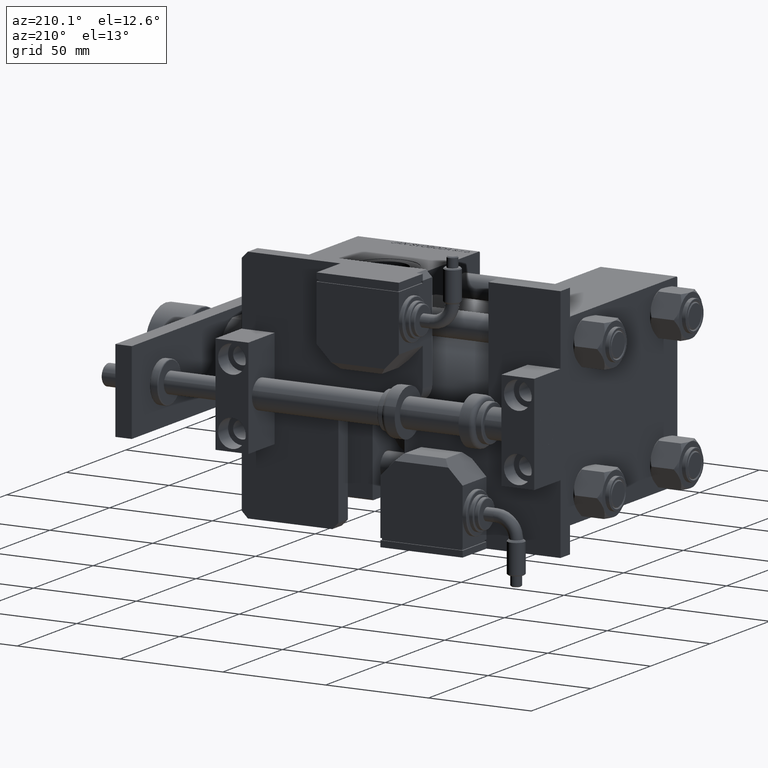
[diagram: clean part render]
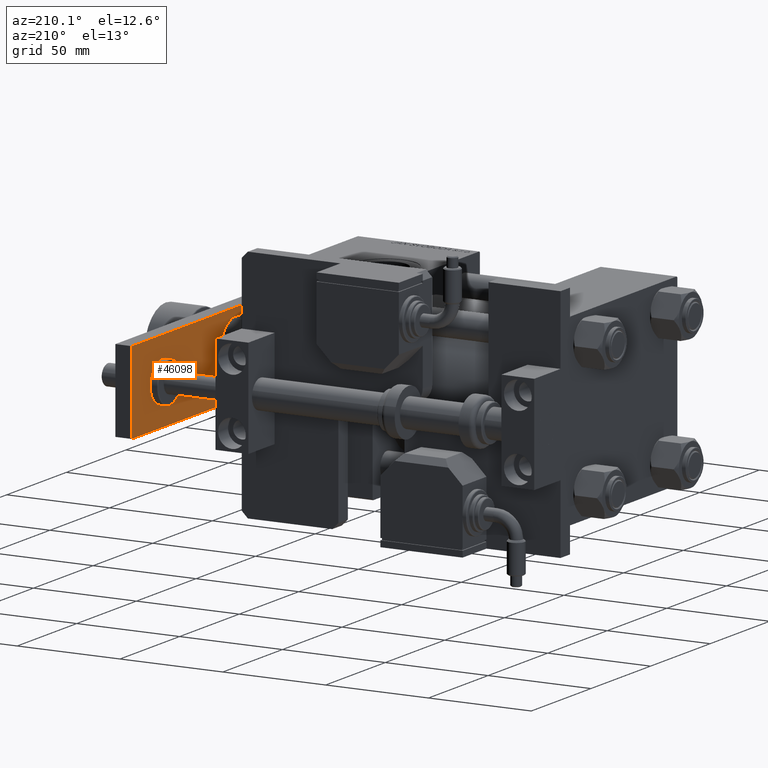
[diagram: same view with one face highlighted and labeled with its STEP entity id]
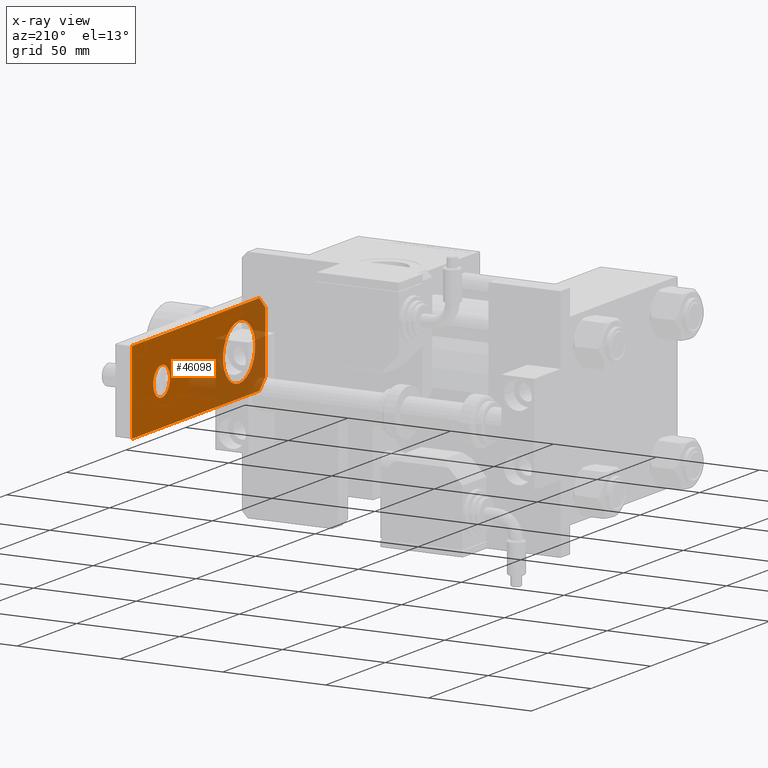
[diagram: x-ray of the same camera — body ghosted, the highlighted face saturated]
A machine part, auxiliary view. The second image highlights one B-rep face of the part: STEP entity #46098.
The next image is the same camera in x-ray: the body ghosted, the highlighted face saturated — about 30% of this face is hidden behind the body in this view.
In plain terms, the highlighted planar face has unit normal (1, 0, -0).
Its self-contained STEP definition (entity closure, byte-faithful):
#367 = ORIENTED_EDGE ( 'NONE', *, *, #19485, .F. ) ;
#391 = VERTEX_POINT ( 'NONE', #34128 ) ;
#494 = CARTESIAN_POINT ( 'NONE',  ( 13.50000000000000000, 21.99999999999999289, 0.000000000000000000 ) ) ;
#1401 = ORIENTED_EDGE ( 'NONE', *, *, #28766, .T. ) ;
#1645 = DIRECTION ( 'NONE',  ( 0.000000000000000000, 0.000000000000000000, 1.000000000000000000 ) ) ;
#2628 = VERTEX_POINT ( 'NONE', #6258 ) ;
#3092 = CARTESIAN_POINT ( 'NONE',  ( 20.00000000000001421, 4.999999999999989342, 0.000000000000000000 ) ) ;
#3747 = AXIS2_PLACEMENT_3D ( 'NONE', #35823, #41376, #14164 ) ;
#4846 = DIRECTION ( 'NONE',  ( -1.000000000000000000, 0.000000000000000000, 0.000000000000000000 ) ) ;
#5014 = CARTESIAN_POINT ( 'NONE',  ( -15.00000000000001066, 0.000000000000000000, 0.000000000000000000 ) ) ;
#5594 = DIRECTION ( 'NONE',  ( -0.7071067811865465735, 0.7071067811865485719, -0.000000000000000000 ) ) ;
#5622 = CARTESIAN_POINT ( 'NONE',  ( 20.00000000000001421, 4.999999999999990230, 0.000000000000000000 ) ) ;
#5711 = EDGE_LOOP ( 'NONE', ( #1401, #12158 ) ) ;
#5985 = EDGE_CURVE ( 'NONE', #26252, #48296, #41350, .T. ) ;
#6010 = CARTESIAN_POINT ( 'NONE',  ( -7.000000000000004441, 87.00000000000000000, 0.000000000000000000 ) ) ;
#6258 = CARTESIAN_POINT ( 'NONE',  ( -20.00000000000001421, 5.000000000000018652, 0.000000000000000000 ) ) ;
#7279 = VECTOR ( 'NONE', #7601, 1000.000000000000000 ) ;
#7601 = DIRECTION ( 'NONE',  ( 1.000000000000000000, 0.000000000000000000, 0.000000000000000000 ) ) ;
#7676 = CARTESIAN_POINT ( 'NONE',  ( -20.00000000000000355, 112.0000000000000000, 0.000000000000000000 ) ) ;
#8056 = DIRECTION ( 'NONE',  ( 0.000000000000000000, 0.000000000000000000, 1.000000000000000000 ) ) ;
#8081 = LINE ( 'NONE', #57268, #44061 ) ;
#11774 = CARTESIAN_POINT ( 'NONE',  ( 0.000000000000000000, 0.000000000000000000, 0.000000000000000000 ) ) ;
#12158 = ORIENTED_EDGE ( 'NONE', *, *, #42363, .T. ) ;
#14164 = DIRECTION ( 'NONE',  ( 1.000000000000000000, 0.000000000000000000, 0.000000000000000000 ) ) ;
#14194 = EDGE_CURVE ( 'NONE', #43693, #48296, #24328, .T. ) ;
#14592 = VERTEX_POINT ( 'NONE', #22675 ) ;
#14701 = AXIS2_PLACEMENT_3D ( 'NONE', #39402, #8056, #26787 ) ;
#15383 = CARTESIAN_POINT ( 'NONE',  ( 20.00000000000001421, 0.000000000000000000, 0.000000000000000000 ) ) ;
#16452 = FACE_BOUND ( 'NONE', #5711, .T. ) ;
#16490 = EDGE_CURVE ( 'NONE', #26252, #14592, #25037, .T. ) ;
#17139 = ORIENTED_EDGE ( 'NONE', *, *, #16490, .F. ) ;
#17906 = VERTEX_POINT ( 'NONE', #494 ) ;
#18772 = LINE ( 'NONE', #5014, #27361 ) ;
#19093 = DIRECTION ( 'NONE',  ( -0.7071067811865485719, -0.7071067811865465735, -0.000000000000000000 ) ) ;
#19308 = VERTEX_POINT ( 'NONE', #27921 ) ;
#19485 = EDGE_CURVE ( 'NONE', #19308, #2628, #43117, .T. ) ;
#19691 = CARTESIAN_POINT ( 'NONE',  ( 7.000000000000004441, 87.00000000000000000, 0.000000000000000000 ) ) ;
#20539 = VECTOR ( 'NONE', #47573, 1000.000000000000000 ) ;
#21141 = DIRECTION ( 'NONE',  ( 1.000000000000000000, 0.000000000000000000, 0.000000000000000000 ) ) ;
#22163 = EDGE_CURVE ( 'NONE', #391, #17906, #24344, .T. ) ;
#22675 = CARTESIAN_POINT ( 'NONE',  ( 19.99999999999999645, 112.0000000000000000, 0.000000000000000000 ) ) ;
#23121 = EDGE_LOOP ( 'NONE', ( #32708, #42961, #367, #24027, #17139, #53239 ) ) ;
#23129 = CIRCLE ( 'NONE', #14701, 13.50000000000000000 ) ;
#24027 = ORIENTED_EDGE ( 'NONE', *, *, #47104, .F. ) ;
#24199 = DIRECTION ( 'NONE',  ( 1.000000000000000000, 0.000000000000000000, 0.000000000000000000 ) ) ;
#24328 = LINE ( 'NONE', #24613, #7279 ) ;
#24344 = CIRCLE ( 'NONE', #3747, 13.50000000000000000 ) ;
#24613 = CARTESIAN_POINT ( 'NONE',  ( -20.00000000000001421, 0.000000000000000000, 0.000000000000000000 ) ) ;
#24615 = EDGE_CURVE ( 'NONE', #43693, #2628, #18772, .T. ) ;
#25037 = LINE ( 'NONE', #15383, #20539 ) ;
#25538 = PLANE ( 'NONE',  #57084 ) ;
#26252 = VERTEX_POINT ( 'NONE', #3092 ) ;
#26787 = DIRECTION ( 'NONE',  ( 1.000000000000000000, 0.000000000000000000, 0.000000000000000000 ) ) ;
#27038 = CIRCLE ( 'NONE', #38251, 7.000000000000004441 ) ;
#27361 = VECTOR ( 'NONE', #5594, 1000.000000000000000 ) ;
#27921 = CARTESIAN_POINT ( 'NONE',  ( -20.00000000000000355, 112.0000000000000000, 0.000000000000000000 ) ) ;
#28766 = EDGE_CURVE ( 'NONE', #50448, #31783, #29406, .T. ) ;
#29406 = CIRCLE ( 'NONE', #41565, 7.000000000000004441 ) ;
#31783 = VERTEX_POINT ( 'NONE', #19691 ) ;
#32708 = ORIENTED_EDGE ( 'NONE', *, *, #14194, .F. ) ;
#33063 = CARTESIAN_POINT ( 'NONE',  ( -2.000174246416480903E-16, 87.00000000000000000, 0.000000000000000000 ) ) ;
#34089 = CARTESIAN_POINT ( 'NONE',  ( 15.00000000000001066, 0.000000000000000000, 0.000000000000000000 ) ) ;
#34128 = CARTESIAN_POINT ( 'NONE',  ( -13.50000000000000000, 21.99999999999999289, 0.000000000000000000 ) ) ;
#34313 = FACE_BOUND ( 'NONE', #52973, .T. ) ;
#34351 = EDGE_CURVE ( 'NONE', #17906, #391, #23129, .T. ) ;
#35823 = CARTESIAN_POINT ( 'NONE',  ( 0.000000000000000000, 21.99999999999999289, 0.000000000000000000 ) ) ;
#36719 = ORIENTED_EDGE ( 'NONE', *, *, #22163, .T. ) ;
#38251 = AXIS2_PLACEMENT_3D ( 'NONE', #45288, #1645, #24199 ) ;
#38320 = DIRECTION ( 'NONE',  ( 0.000000000000000000, 0.000000000000000000, 1.000000000000000000 ) ) ;
#39402 = CARTESIAN_POINT ( 'NONE',  ( 0.000000000000000000, 21.99999999999999289, 0.000000000000000000 ) ) ;
#39849 = CARTESIAN_POINT ( 'NONE',  ( -15.00000000000001066, 0.000000000000000000, 0.000000000000000000 ) ) ;
#39871 = DIRECTION ( 'NONE',  ( -0.000000000000000000, 0.000000000000000000, 1.000000000000000000 ) ) ;
#40775 = VECTOR ( 'NONE', #19093, 1000.000000000000000 ) ;
#41350 = LINE ( 'NONE', #5622, #40775 ) ;
#41376 = DIRECTION ( 'NONE',  ( 0.000000000000000000, 0.000000000000000000, 1.000000000000000000 ) ) ;
#41565 = AXIS2_PLACEMENT_3D ( 'NONE', #33063, #38320, #56177 ) ;
#42363 = EDGE_CURVE ( 'NONE', #31783, #50448, #27038, .T. ) ;
#42913 = ORIENTED_EDGE ( 'NONE', *, *, #34351, .T. ) ;
#42961 = ORIENTED_EDGE ( 'NONE', *, *, #24615, .T. ) ;
#43117 = LINE ( 'NONE', #7676, #46827 ) ;
#43393 = DIRECTION ( 'NONE',  ( -9.293161478447180511E-17, -1.000000000000000000, 0.000000000000000000 ) ) ;
#43693 = VERTEX_POINT ( 'NONE', #39849 ) ;
#44061 = VECTOR ( 'NONE', #4846, 1000.000000000000000 ) ;
#45288 = CARTESIAN_POINT ( 'NONE',  ( -2.000174246416480903E-16, 87.00000000000000000, 0.000000000000000000 ) ) ;
#46098 = ADVANCED_FACE ( 'NONE', ( #56565, #16452, #34313 ), #25538, .F. ) ;
#46827 = VECTOR ( 'NONE', #43393, 1000.000000000000000 ) ;
#47104 = EDGE_CURVE ( 'NONE', #14592, #19308, #8081, .T. ) ;
#47573 = DIRECTION ( 'NONE',  ( -1.548860246407863583E-16, 1.000000000000000000, 0.000000000000000000 ) ) ;
#48296 = VERTEX_POINT ( 'NONE', #34089 ) ;
#50448 = VERTEX_POINT ( 'NONE', #6010 ) ;
#52973 = EDGE_LOOP ( 'NONE', ( #36719, #42913 ) ) ;
#53239 = ORIENTED_EDGE ( 'NONE', *, *, #5985, .T. ) ;
#56177 = DIRECTION ( 'NONE',  ( 1.000000000000000000, 0.000000000000000000, 0.000000000000000000 ) ) ;
#56565 = FACE_OUTER_BOUND ( 'NONE', #23121, .T. ) ;
#57084 = AXIS2_PLACEMENT_3D ( 'NONE', #11774, #39871, #21141 ) ;
#57268 = CARTESIAN_POINT ( 'NONE',  ( 19.99999999999999645, 112.0000000000000000, 0.000000000000000000 ) ) ;